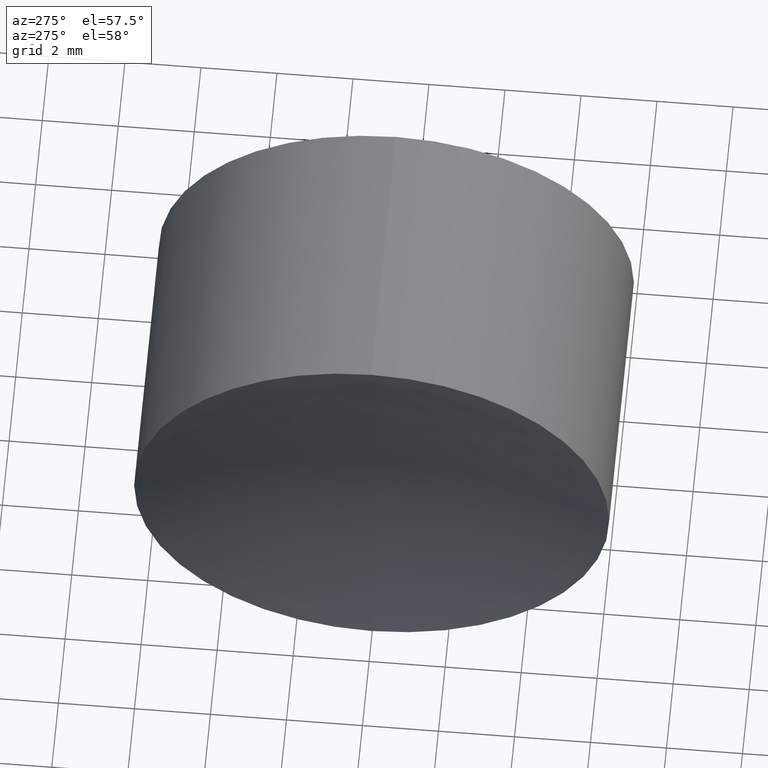
[diagram: clean part render]
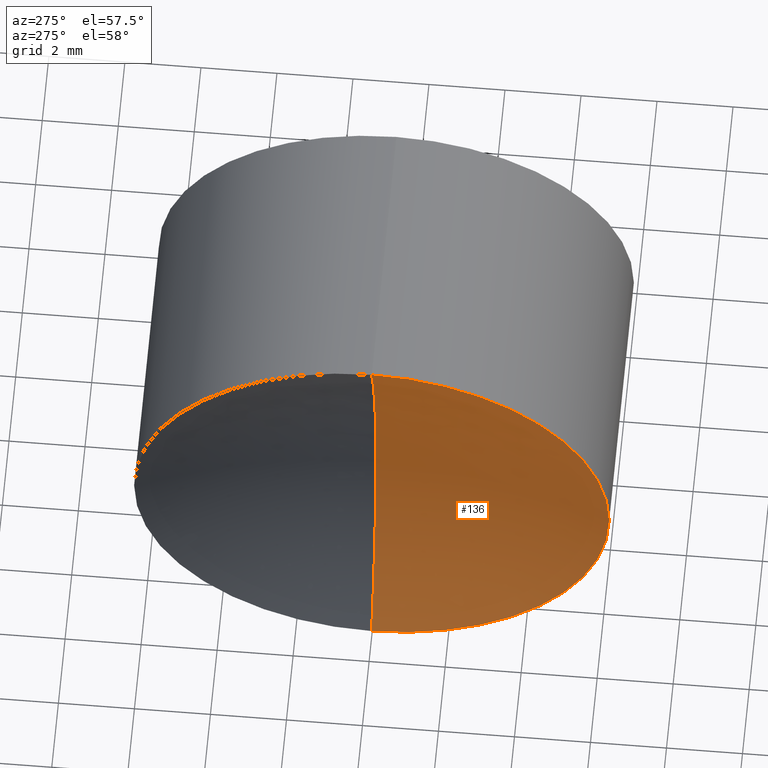
[diagram: same view with one face highlighted and labeled with its STEP entity id]
A machine part, auxiliary view. The second image highlights one B-rep face of the part: STEP entity #136.
In plain terms, the highlighted spherical surface has radius 15.6 mm.
Its self-contained STEP definition (entity closure, byte-faithful):
#19 = ORIENTED_EDGE ( 'NONE', *, *, #140, .F. ) ;
#33 = VERTEX_POINT ( 'NONE', #133 ) ;
#44 = AXIS2_PLACEMENT_3D ( 'NONE', #49, #202, #297 ) ;
#49 = CARTESIAN_POINT ( 'NONE',  ( 224.7643804590949800, 0.0000000000000000000, -4.143845505352728400E-014 ) ) ;
#52 = FACE_OUTER_BOUND ( 'NONE', #56, .T. ) ;
#56 = EDGE_LOOP ( 'NONE', ( #19, #81, #85 ) ) ;
#62 = DIRECTION ( 'NONE',  ( -0.0000000000000000000, 1.000000000000000000, 0.0000000000000000000 ) ) ;
#68 = DIRECTION ( 'NONE',  ( 0.0000000000000000000, 0.0000000000000000000, 1.000000000000000000 ) ) ;
#70 = VERTEX_POINT ( 'NONE', #258 ) ;
#81 = ORIENTED_EDGE ( 'NONE', *, *, #128, .T. ) ;
#82 = CARTESIAN_POINT ( 'NONE',  ( 210.4711128131016300, 0.0000000000000000000, 0.0000000000000000000 ) ) ;
#85 = ORIENTED_EDGE ( 'NONE', *, *, #317, .T. ) ;
#97 = DIRECTION ( 'NONE',  ( 0.0000000000000000000, -1.224646799147353200E-016, 1.000000000000000000 ) ) ;
#104 = AXIS2_PLACEMENT_3D ( 'NONE', #201, #62, #68 ) ;
#128 = EDGE_CURVE ( 'NONE', #244, #33, #331, .T. ) ;
#133 = CARTESIAN_POINT ( 'NONE',  ( 224.7643804590949800, 7.654042494671005900E-016, -6.250000000000042600 ) ) ;
#136 = ADVANCED_FACE ( 'NONE', ( #52 ), #256, .F. ) ;
#140 = EDGE_CURVE ( 'NONE', #244, #70, #182, .T. ) ;
#152 = CARTESIAN_POINT ( 'NONE',  ( 226.0711128131016200, 0.0000000000000000000, -1.910449006669870900E-015 ) ) ;
#182 = CIRCLE ( 'NONE', #197, 15.60000000000000100 ) ;
#197 = AXIS2_PLACEMENT_3D ( 'NONE', #268, #288, #263 ) ;
#201 = CARTESIAN_POINT ( 'NONE',  ( 210.4711128131016300, 0.0000000000000000000, 0.0000000000000000000 ) ) ;
#202 = DIRECTION ( 'NONE',  ( -1.000000000000000000, -0.0000000000000000000, 1.836970198721029700E-016 ) ) ;
#244 = VERTEX_POINT ( 'NONE', #152 ) ;
#256 = SPHERICAL_SURFACE ( 'NONE', #104, 15.60000000000000100 ) ;
#258 = CARTESIAN_POINT ( 'NONE',  ( 224.7643804590949800, 0.0000000000000000000, 6.249999999999998200 ) ) ;
#263 = DIRECTION ( 'NONE',  ( 0.0000000000000000000, 0.0000000000000000000, -1.000000000000000000 ) ) ;
#268 = CARTESIAN_POINT ( 'NONE',  ( 210.4711128131016300, 0.0000000000000000000, 0.0000000000000000000 ) ) ;
#274 = AXIS2_PLACEMENT_3D ( 'NONE', #82, #329, #97 ) ;
#288 = DIRECTION ( 'NONE',  ( 0.0000000000000000000, -1.000000000000000000, 0.0000000000000000000 ) ) ;
#297 = DIRECTION ( 'NONE',  ( 0.0000000000000000000, 0.0000000000000000000, 1.000000000000000000 ) ) ;
#315 = CIRCLE ( 'NONE', #44, 6.250000000000040900 ) ;
#317 = EDGE_CURVE ( 'NONE', #33, #70, #315, .T. ) ;
#329 = DIRECTION ( 'NONE',  ( 2.249639673992786400E-032, 1.000000000000000000, 1.224646799147353200E-016 ) ) ;
#331 = CIRCLE ( 'NONE', #274, 15.60000000000000100 ) ;